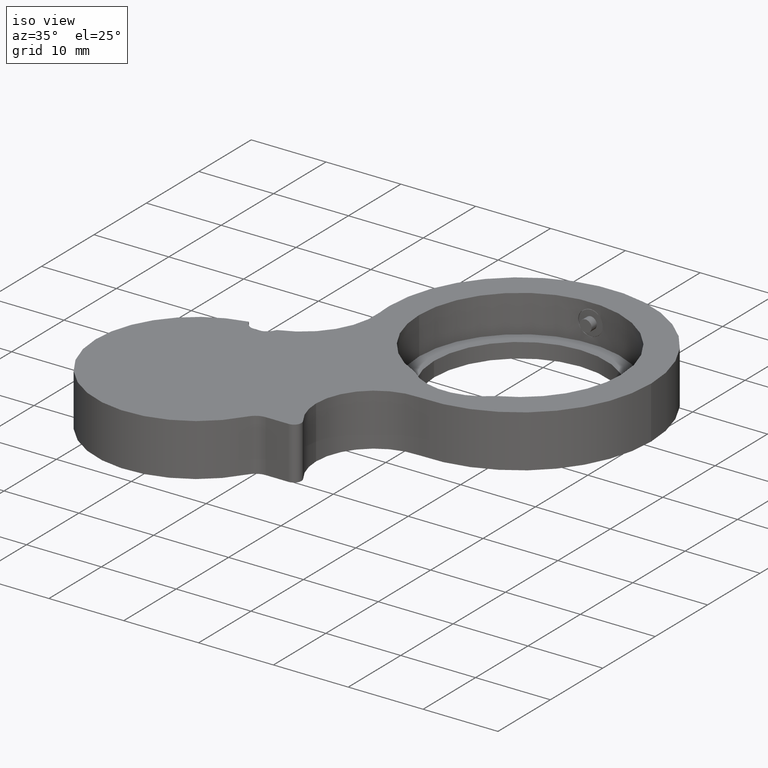
[diagram: clean part render]
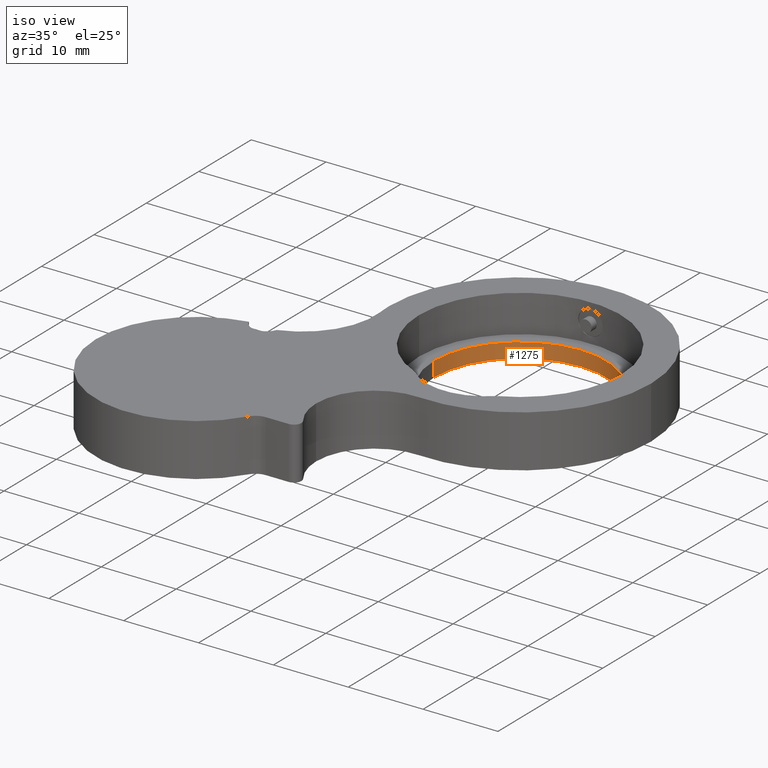
[diagram: same view with one face highlighted and labeled with its STEP entity id]
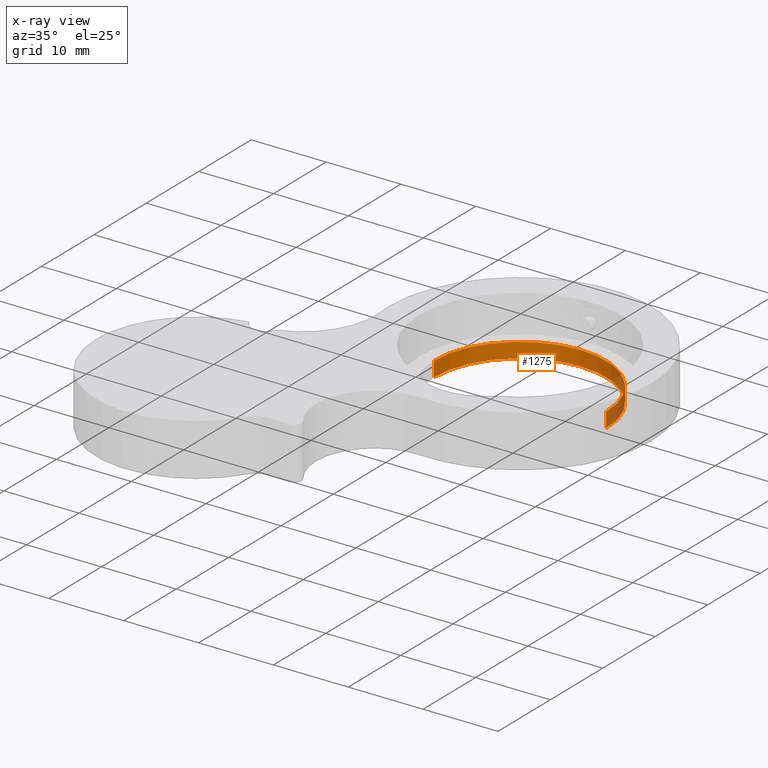
[diagram: x-ray of the same camera — body ghosted, the highlighted face saturated]
A machine part, iso view. The second image highlights one B-rep face of the part: STEP entity #1275.
The next image is the same camera in x-ray: the body ghosted, the highlighted face saturated — about 13% of this face is hidden behind the body in this view.
In plain terms, the highlighted cylindrical surface (partial cylindrical patch) has radius 11.5 mm, axis along (-0, -0, -1).
Its self-contained STEP definition (entity closure, byte-faithful):
#11 = LINE ( 'NONE', #302, #855 ) ;
#20 = FACE_OUTER_BOUND ( 'NONE', #704, .T. ) ;
#86 = ORIENTED_EDGE ( 'NONE', *, *, #651, .T. ) ;
#149 = ORIENTED_EDGE ( 'NONE', *, *, #865, .F. ) ;
#189 = AXIS2_PLACEMENT_3D ( 'NONE', #1518, #1505, #790 ) ;
#192 = DIRECTION ( 'NONE',  ( -1.000000000000000000, 0.0000000000000000000, 0.0000000000000000000 ) ) ;
#199 = DIRECTION ( 'NONE',  ( 1.000000000000000000, 0.0000000000000000000, 0.0000000000000000000 ) ) ;
#252 = DIRECTION ( 'NONE',  ( -0.0000000000000000000, -0.0000000000000000000, -1.000000000000000000 ) ) ;
#266 = CYLINDRICAL_SURFACE ( 'NONE', #301, 11.50000000000000500 ) ;
#301 = AXIS2_PLACEMENT_3D ( 'NONE', #759, #533, #192 ) ;
#302 = CARTESIAN_POINT ( 'NONE',  ( 3.168588323488616100, 18.96969456225321700, 59.50000000000000700 ) ) ;
#344 = CARTESIAN_POINT ( 'NONE',  ( 26.16858832348862400, 18.96969456225321700, 54.50000000000000700 ) ) ;
#435 = LINE ( 'NONE', #1287, #925 ) ;
#522 = AXIS2_PLACEMENT_3D ( 'NONE', #902, #1480, #199 ) ;
#533 = DIRECTION ( 'NONE',  ( -0.0000000000000000000, -0.0000000000000000000, -1.000000000000000000 ) ) ;
#543 = CIRCLE ( 'NONE', #189, 11.50000000000000400 ) ;
#622 = EDGE_CURVE ( 'NONE', #734, #1331, #856, .T. ) ;
#651 = EDGE_CURVE ( 'NONE', #1331, #1033, #11, .T. ) ;
#704 = EDGE_LOOP ( 'NONE', ( #1466, #1254, #86, #149 ) ) ;
#734 = VERTEX_POINT ( 'NONE', #344 ) ;
#759 = CARTESIAN_POINT ( 'NONE',  ( 14.66858832348862100, 18.96969456225321700, 59.50000000000000700 ) ) ;
#790 = DIRECTION ( 'NONE',  ( 1.000000000000000000, 0.0000000000000000000, 0.0000000000000000000 ) ) ;
#833 = CARTESIAN_POINT ( 'NONE',  ( 3.168588323488616100, 18.96969456225321700, 52.50000000000000700 ) ) ;
#855 = VECTOR ( 'NONE', #1251, 1000.000000000000000 ) ;
#856 = CIRCLE ( 'NONE', #522, 11.50000000000000400 ) ;
#865 = EDGE_CURVE ( 'NONE', #1363, #1033, #543, .T. ) ;
#902 = CARTESIAN_POINT ( 'NONE',  ( 14.66858832348862100, 18.96969456225321700, 54.50000000000000700 ) ) ;
#925 = VECTOR ( 'NONE', #252, 1000.000000000000000 ) ;
#983 = EDGE_CURVE ( 'NONE', #734, #1363, #435, .T. ) ;
#1033 = VERTEX_POINT ( 'NONE', #833 ) ;
#1149 = CARTESIAN_POINT ( 'NONE',  ( 3.168588323488616100, 18.96969456225321700, 54.50000000000000700 ) ) ;
#1251 = DIRECTION ( 'NONE',  ( -0.0000000000000000000, -0.0000000000000000000, -1.000000000000000000 ) ) ;
#1254 = ORIENTED_EDGE ( 'NONE', *, *, #622, .T. ) ;
#1275 = ADVANCED_FACE ( 'NONE', ( #20 ), #266, .F. ) ;
#1287 = CARTESIAN_POINT ( 'NONE',  ( 26.16858832348862400, 18.96969456225321700, 59.50000000000000700 ) ) ;
#1331 = VERTEX_POINT ( 'NONE', #1149 ) ;
#1363 = VERTEX_POINT ( 'NONE', #1509 ) ;
#1466 = ORIENTED_EDGE ( 'NONE', *, *, #983, .F. ) ;
#1480 = DIRECTION ( 'NONE',  ( 0.0000000000000000000, 0.0000000000000000000, 1.000000000000000000 ) ) ;
#1505 = DIRECTION ( 'NONE',  ( 0.0000000000000000000, 0.0000000000000000000, 1.000000000000000000 ) ) ;
#1509 = CARTESIAN_POINT ( 'NONE',  ( 26.16858832348862400, 18.96969456225321700, 52.50000000000000700 ) ) ;
#1518 = CARTESIAN_POINT ( 'NONE',  ( 14.66858832348862100, 18.96969456225321700, 52.50000000000000700 ) ) ;